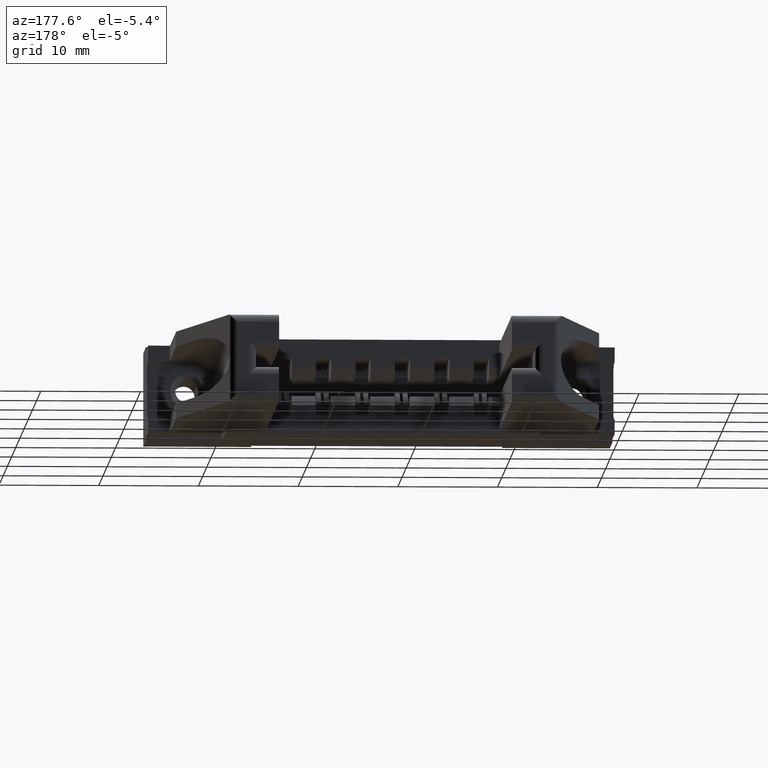
[diagram: clean part render]
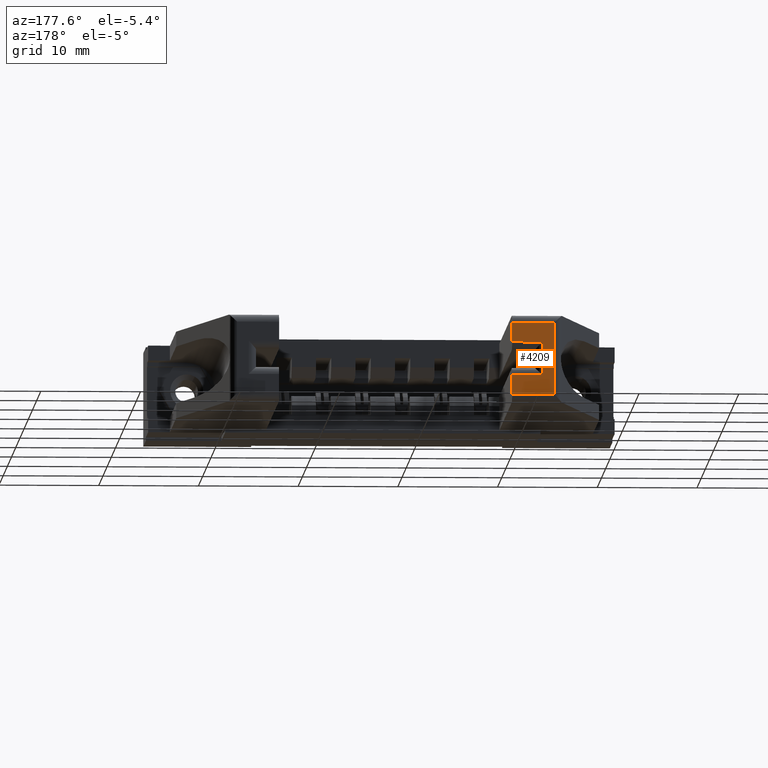
[diagram: same view with one face highlighted and labeled with its STEP entity id]
A machine part, auxiliary view. The second image highlights one B-rep face of the part: STEP entity #4209.
In plain terms, the highlighted planar face has unit normal (0, 1, 0).
Its self-contained STEP definition (entity closure, byte-faithful):
#51 = PLANE ( 'NONE',  #3667 ) ;
#350 = ORIENTED_EDGE ( 'NONE', *, *, #3378, .F. ) ;
#356 = VERTEX_POINT ( 'NONE', #6558 ) ;
#388 = ORIENTED_EDGE ( 'NONE', *, *, #6644, .T. ) ;
#570 = CARTESIAN_POINT ( 'NONE',  ( 0.4610000000000000800, 1.550000000000000000, -0.3430000000000000300 ) ) ;
#721 = ORIENTED_EDGE ( 'NONE', *, *, #2682, .T. ) ;
#1075 = EDGE_CURVE ( 'NONE', #356, #11313, #4368, .T. ) ;
#1509 = DIRECTION ( 'NONE',  ( 0.0000000000000000000, 0.0000000000000000000, 1.000000000000000000 ) ) ;
#1527 = CARTESIAN_POINT ( 'NONE',  ( 0.4610000000000000800, 1.550000000000000000, -0.03000000000000002300 ) ) ;
#1789 = ORIENTED_EDGE ( 'NONE', *, *, #2335, .T. ) ;
#1859 = VECTOR ( 'NONE', #9525, 39.37007874015748100 ) ;
#1874 = DIRECTION ( 'NONE',  ( 0.0000000000000000000, 1.000000000000000000, -0.0000000000000000000 ) ) ;
#1937 = EDGE_CURVE ( 'NONE', #6296, #7431, #10660, .T. ) ;
#1940 = VERTEX_POINT ( 'NONE', #3237 ) ;
#2150 = VERTEX_POINT ( 'NONE', #10369 ) ;
#2335 = EDGE_CURVE ( 'NONE', #1940, #5551, #8276, .T. ) ;
#2369 = CARTESIAN_POINT ( 'NONE',  ( 0.4610000000000000800, 1.550000000000000000, -0.2369999999999999900 ) ) ;
#2411 = DIRECTION ( 'NONE',  ( -1.000000000000000000, -0.0000000000000000000, -3.278893948309973300E-033 ) ) ;
#2682 = EDGE_CURVE ( 'NONE', #7431, #2150, #7555, .T. ) ;
#2737 = VECTOR ( 'NONE', #8584, 39.37007874015748100 ) ;
#2927 = ORIENTED_EDGE ( 'NONE', *, *, #6135, .T. ) ;
#2968 = VERTEX_POINT ( 'NONE', #6794 ) ;
#3237 = CARTESIAN_POINT ( 'NONE',  ( 0.2944991909279191500, 1.550000000000000000, -0.02999999999999999900 ) ) ;
#3378 = EDGE_CURVE ( 'NONE', #6296, #5551, #7453, .T. ) ;
#3428 = LINE ( 'NONE', #5849, #2737 ) ;
#3667 = AXIS2_PLACEMENT_3D ( 'NONE', #7153, #1874, #6306 ) ;
#4204 = CARTESIAN_POINT ( 'NONE',  ( 0.4610000000000000800, 1.550000000000000000, -0.3430000000000000300 ) ) ;
#4209 = ADVANCED_FACE ( 'NONE', ( #11061 ), #51, .T. ) ;
#4310 = EDGE_LOOP ( 'NONE', ( #2927, #1789, #350, #9132, #721, #11328, #4861, #388 ) ) ;
#4368 = LINE ( 'NONE', #4204, #10957 ) ;
#4378 = CARTESIAN_POINT ( 'NONE',  ( 0.4610000000000000800, 1.550000000000000000, -0.1060000000000000400 ) ) ;
#4407 = LINE ( 'NONE', #9764, #11405 ) ;
#4439 = CARTESIAN_POINT ( 'NONE',  ( 0.4610000000000000800, 1.550000000000000000, -0.03000000000000002300 ) ) ;
#4861 = ORIENTED_EDGE ( 'NONE', *, *, #1075, .F. ) ;
#5025 = VECTOR ( 'NONE', #1509, 39.37007874015748100 ) ;
#5551 = VERTEX_POINT ( 'NONE', #1527 ) ;
#5608 = VECTOR ( 'NONE', #2411, 39.37007874015748100 ) ;
#5849 = CARTESIAN_POINT ( 'NONE',  ( 0.2944991909279191500, 1.550000000000000000, -0.3430000000000000300 ) ) ;
#5887 = LINE ( 'NONE', #2369, #1859 ) ;
#6135 = EDGE_CURVE ( 'NONE', #2968, #1940, #3428, .T. ) ;
#6199 = CARTESIAN_POINT ( 'NONE',  ( 0.4610000000000000800, 1.550000000000000000, -0.2369999999999999900 ) ) ;
#6296 = VERTEX_POINT ( 'NONE', #4378 ) ;
#6306 = DIRECTION ( 'NONE',  ( 0.0000000000000000000, 0.0000000000000000000, 1.000000000000000000 ) ) ;
#6416 = CARTESIAN_POINT ( 'NONE',  ( 0.3410000000000000800, 1.550000000000000000, -0.2070000000000000200 ) ) ;
#6558 = CARTESIAN_POINT ( 'NONE',  ( 0.4610000000000000800, 1.550000000000000000, -0.3130000000000000000 ) ) ;
#6644 = EDGE_CURVE ( 'NONE', #356, #2968, #4407, .T. ) ;
#6794 = CARTESIAN_POINT ( 'NONE',  ( 0.2944991909279191500, 1.550000000000000000, -0.3130000000000000000 ) ) ;
#6855 = CARTESIAN_POINT ( 'NONE',  ( 0.3410000000000000800, 1.550000000000000000, -0.1060000000000000200 ) ) ;
#6982 = VECTOR ( 'NONE', #8977, 39.37007874015748100 ) ;
#7153 = CARTESIAN_POINT ( 'NONE',  ( 0.4610000000000000800, 1.550000000000000000, -0.3430000000000000300 ) ) ;
#7157 = CARTESIAN_POINT ( 'NONE',  ( 0.3710000000000001100, 1.550000000000000000, -0.1060000000000000200 ) ) ;
#7431 = VERTEX_POINT ( 'NONE', #6855 ) ;
#7453 = LINE ( 'NONE', #570, #5025 ) ;
#7555 = LINE ( 'NONE', #6416, #8134 ) ;
#8103 = EDGE_CURVE ( 'NONE', #2150, #11313, #5887, .T. ) ;
#8134 = VECTOR ( 'NONE', #10256, 39.37007874015748100 ) ;
#8276 = LINE ( 'NONE', #4439, #6982 ) ;
#8584 = DIRECTION ( 'NONE',  ( 0.0000000000000000000, 0.0000000000000000000, 1.000000000000000000 ) ) ;
#8977 = DIRECTION ( 'NONE',  ( 1.000000000000000000, -0.0000000000000000000, -0.0000000000000000000 ) ) ;
#9132 = ORIENTED_EDGE ( 'NONE', *, *, #1937, .T. ) ;
#9525 = DIRECTION ( 'NONE',  ( 1.000000000000000000, 0.0000000000000000000, 5.246230317295956000E-033 ) ) ;
#9764 = CARTESIAN_POINT ( 'NONE',  ( 0.2710000000000000200, 1.550000000000000000, -0.3130000000000000000 ) ) ;
#10256 = DIRECTION ( 'NONE',  ( 0.0000000000000000000, -0.0000000000000000000, -1.000000000000000000 ) ) ;
#10369 = CARTESIAN_POINT ( 'NONE',  ( 0.3410000000000000800, 1.550000000000000000, -0.2369999999999999900 ) ) ;
#10579 = DIRECTION ( 'NONE',  ( -1.000000000000000000, 0.0000000000000000000, 0.0000000000000000000 ) ) ;
#10660 = LINE ( 'NONE', #7157, #5608 ) ;
#10957 = VECTOR ( 'NONE', #11321, 39.37007874015748100 ) ;
#11061 = FACE_OUTER_BOUND ( 'NONE', #4310, .T. ) ;
#11313 = VERTEX_POINT ( 'NONE', #6199 ) ;
#11321 = DIRECTION ( 'NONE',  ( 0.0000000000000000000, 0.0000000000000000000, 1.000000000000000000 ) ) ;
#11328 = ORIENTED_EDGE ( 'NONE', *, *, #8103, .T. ) ;
#11405 = VECTOR ( 'NONE', #10579, 39.37007874015748100 ) ;